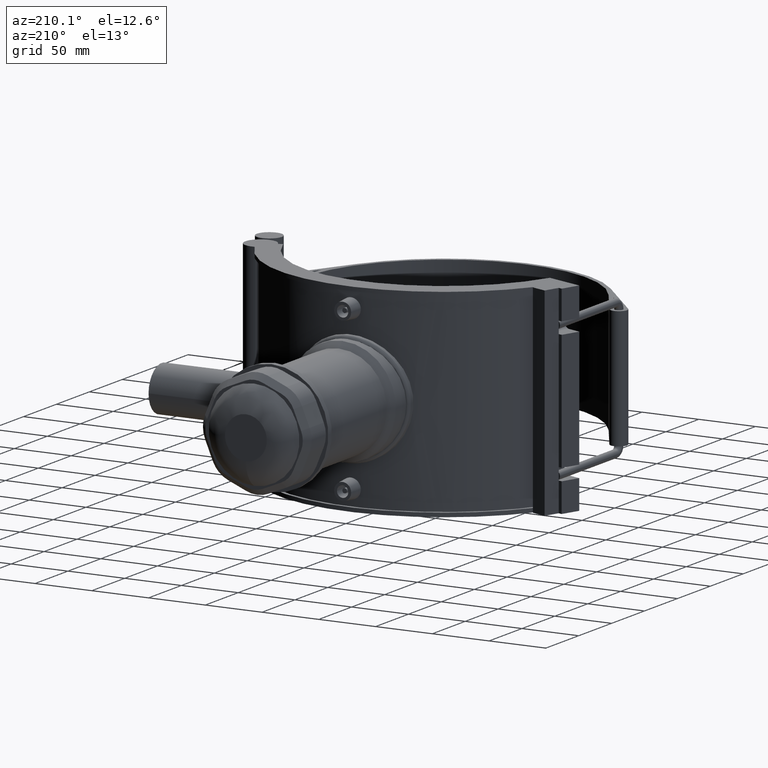
[diagram: clean part render]
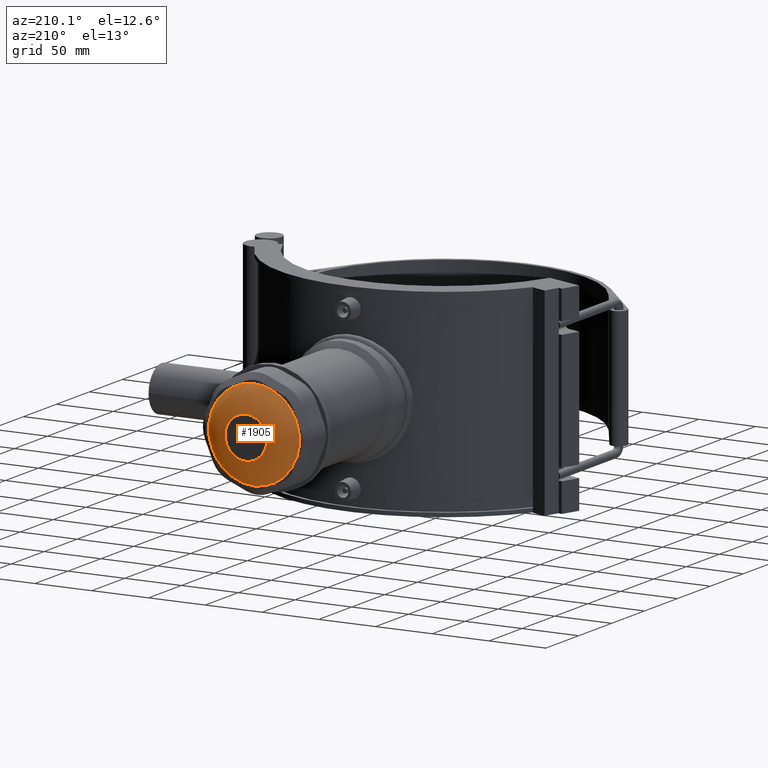
[diagram: same view with one face highlighted and labeled with its STEP entity id]
A machine part, auxiliary view. The second image highlights one B-rep face of the part: STEP entity #1905.
In plain terms, the highlighted face is a freeform B-spline surface patch.
Its self-contained STEP definition (entity closure, byte-faithful):
#26=(
BOUNDED_CURVE()
B_SPLINE_CURVE(2,(#3239,#3240,#3241),.UNSPECIFIED.,.F.,.F.)
B_SPLINE_CURVE_WITH_KNOTS((3,3),(-1.5707963267949,-0.528686953576941),
 .UNSPECIFIED.)
CURVE()
GEOMETRIC_REPRESENTATION_ITEM()
RATIONAL_B_SPLINE_CURVE((1.,0.867294644281863,1.))
REPRESENTATION_ITEM('')
);
#27=(
BOUNDED_SURFACE()
B_SPLINE_SURFACE(2,2,((#3210,#3211,#3212,#3213,#3214,#3215,#3216,#3217,
#3218),(#3219,#3220,#3221,#3222,#3223,#3224,#3225,#3226,#3227),(#3228,#3229,
#3230,#3231,#3232,#3233,#3234,#3235,#3236)),.UNSPECIFIED.,.F.,.T.,.F.)
B_SPLINE_SURFACE_WITH_KNOTS((3,3),(3,2,2,2,3),(0.528686953576941,1.5707963267949),
(-3.14159265358979,-1.5707963267949,0.,1.5707963267949,3.14159265358979),
 .UNSPECIFIED.)
GEOMETRIC_REPRESENTATION_ITEM()
RATIONAL_B_SPLINE_SURFACE(((1.,0.707106781186548,1.,0.707106781186548,1.,
0.707106781186548,1.,0.707106781186548,1.),(0.867294644281863,0.61326992425848,
0.867294644281863,0.61326992425848,0.867294644281863,0.61326992425848,0.867294644281863,
0.61326992425848,0.867294644281863),(1.,0.707106781186548,1.,0.707106781186548,
1.,0.707106781186548,1.,0.707106781186548,1.)))
REPRESENTATION_ITEM('')
SURFACE()
);
#484=FACE_OUTER_BOUND('',#613,.T.);
#613=EDGE_LOOP('',(#1393,#1394,#1395,#1396));
#757=CIRCLE('',#2051,40.);
#759=CIRCLE('',#2054,18.4132471177344);
#868=VERTEX_POINT('',#3205);
#870=VERTEX_POINT('',#3237);
#1070=EDGE_CURVE('',#868,#868,#757,.T.);
#1072=EDGE_CURVE('',#870,#870,#759,.T.);
#1073=EDGE_CURVE('',#870,#868,#26,.T.);
#1393=ORIENTED_EDGE('',*,*,#1072,.T.);
#1394=ORIENTED_EDGE('',*,*,#1073,.T.);
#1395=ORIENTED_EDGE('',*,*,#1070,.T.);
#1396=ORIENTED_EDGE('',*,*,#1073,.F.);
#1905=ADVANCED_FACE('',(#484),#27,.T.);
#2051=AXIS2_PLACEMENT_3D('',#3206,#2365,#2366);
#2054=AXIS2_PLACEMENT_3D('',#3238,#2371,#2372);
#2365=DIRECTION('center_axis',(0.,1.,3.06161699786838E-16));
#2366=DIRECTION('ref_axis',(1.,0.,0.));
#2371=DIRECTION('center_axis',(0.,-1.,-3.06161699786838E-16));
#2372=DIRECTION('ref_axis',(-6.12323399573677E-17,-2.41179193984935E-16,
1.));
#3205=CARTESIAN_POINT('',(7.34788079488412E-15,289.61,-39.9999999999999));
#3206=CARTESIAN_POINT('Origin',(0.,289.61,5.03972774019115E-14));
#3210=CARTESIAN_POINT('Ctrl Pts',(2.44929359829471E-15,289.61,-39.9999999999999));
#3211=CARTESIAN_POINT('Ctrl Pts',(40.,289.61,-39.9999999999999));
#3212=CARTESIAN_POINT('Ctrl Pts',(40.,289.61,5.28465710002062E-14));
#3213=CARTESIAN_POINT('Ctrl Pts',(40.,289.61,40.));
#3214=CARTESIAN_POINT('Ctrl Pts',(-2.44929359829471E-15,289.61,40.));
#3215=CARTESIAN_POINT('Ctrl Pts',(-40.,289.61,40.));
#3216=CARTESIAN_POINT('Ctrl Pts',(-40.,289.61,4.79479838036167E-14));
#3217=CARTESIAN_POINT('Ctrl Pts',(-40.,289.61,-39.9999999999999));
#3218=CARTESIAN_POINT('Ctrl Pts',(2.44929359829471E-15,289.61,-39.9999999999999));
#3219=CARTESIAN_POINT('Ctrl Pts',(2.00611382692276E-15,302.,-32.7623250772302));
#3220=CARTESIAN_POINT('Ctrl Pts',(32.7623250772303,302.,-32.7623250772302));
#3221=CARTESIAN_POINT('Ctrl Pts',(32.7623250772303,302.,5.61967346891931E-14));
#3222=CARTESIAN_POINT('Ctrl Pts',(32.7623250772303,302.,32.7623250772303));
#3223=CARTESIAN_POINT('Ctrl Pts',(-2.00611382692276E-15,302.,32.7623250772303));
#3224=CARTESIAN_POINT('Ctrl Pts',(-32.7623250772303,302.,32.7623250772303));
#3225=CARTESIAN_POINT('Ctrl Pts',(-32.7623250772303,302.,5.21845070353476E-14));
#3226=CARTESIAN_POINT('Ctrl Pts',(-32.7623250772303,302.,-32.7623250772302));
#3227=CARTESIAN_POINT('Ctrl Pts',(2.00611382692276E-15,302.,-32.7623250772302));
#3228=CARTESIAN_POINT('Ctrl Pts',(1.12748620723214E-15,302.,-18.4132471177344));
#3229=CARTESIAN_POINT('Ctrl Pts',(18.4132471177344,302.,-18.4132471177344));
#3230=CARTESIAN_POINT('Ctrl Pts',(18.4132471177344,302.,5.53181070695025E-14));
#3231=CARTESIAN_POINT('Ctrl Pts',(18.4132471177344,302.,18.4132471177345));
#3232=CARTESIAN_POINT('Ctrl Pts',(-1.12748620723214E-15,302.,18.4132471177345));
#3233=CARTESIAN_POINT('Ctrl Pts',(-18.4132471177344,302.,18.4132471177345));
#3234=CARTESIAN_POINT('Ctrl Pts',(-18.4132471177344,302.,5.30631346550382E-14));
#3235=CARTESIAN_POINT('Ctrl Pts',(-18.4132471177344,302.,-18.4132471177344));
#3236=CARTESIAN_POINT('Ctrl Pts',(1.12748620723214E-15,302.,-18.4132471177344));
#3237=CARTESIAN_POINT('',(3.38245862169641E-15,302.,-18.4132471177344));
#3238=CARTESIAN_POINT('Origin',(0.,302.,5.41906208622704E-14));
#3239=CARTESIAN_POINT('Ctrl Pts',(1.12748620723214E-15,302.,-18.4132471177344));
#3240=CARTESIAN_POINT('Ctrl Pts',(2.00611382692276E-15,302.,-32.7623250772302));
#3241=CARTESIAN_POINT('Ctrl Pts',(2.44929359829471E-15,289.61,-39.9999999999999));